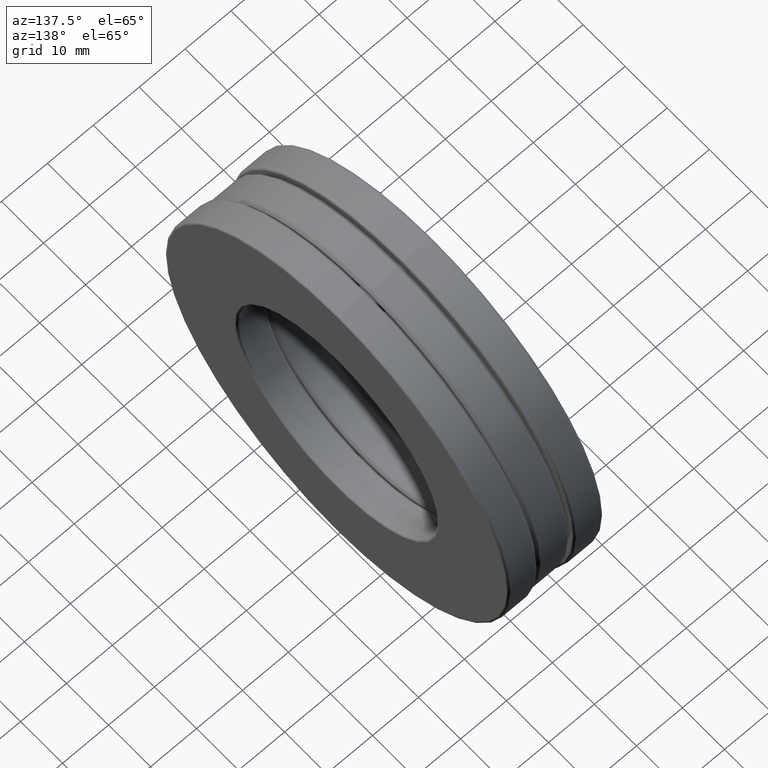
[diagram: clean part render]
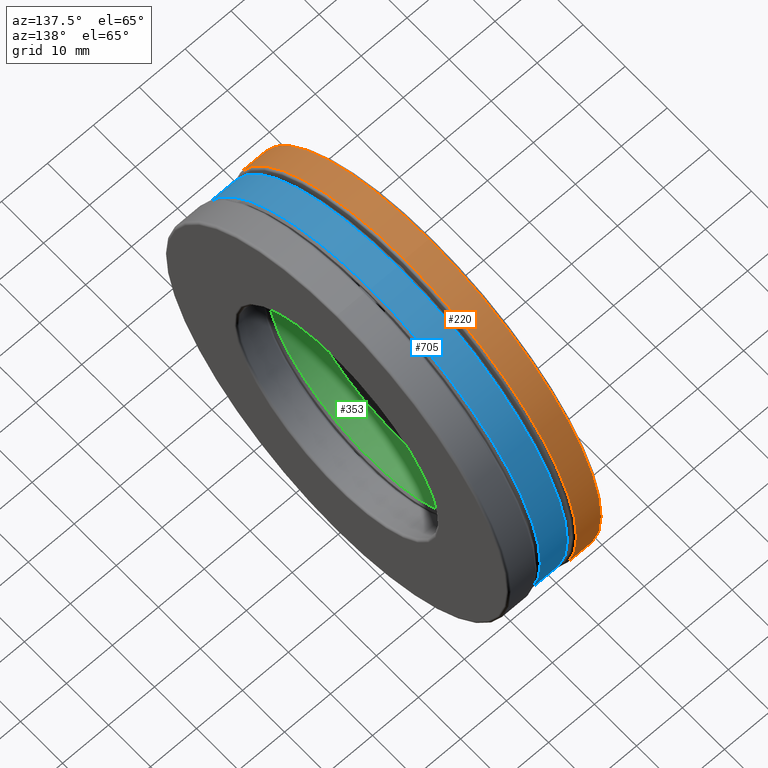
[diagram: same view with three faces highlighted in distinct colors, each labeled with its STEP entity id]
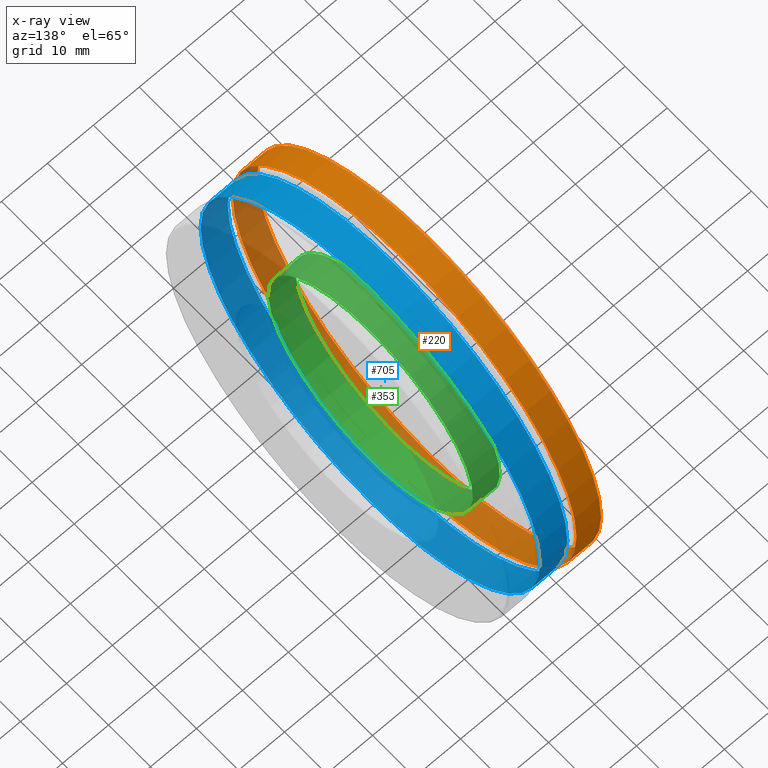
[diagram: x-ray of the same camera — body ghosted, the three highlighted faces saturated]
A machine part, auxiliary view with three faces highlighted in distinct colors.
The next image is the same camera in x-ray (body ghosted, the three faces saturated) — at least one of them is partly hidden behind the body in this view.
Their STEP definitions:

[orange] entity #220 — the highlighted cylindrical surface (bore or boss wall) has radius 40.8781 mm, axis along (-1, -0, -0).
#27 = DIRECTION ( 'NONE',  ( -1.000000000000000000, -0.0000000000000000000, -0.0000000000000000000 ) ) ;
#192 = DIRECTION ( 'NONE',  ( 0.0000000000000000000, 0.0000000000000000000, 1.000000000000000000 ) ) ;
#220 = ADVANCED_FACE ( 'NONE', ( #1051, #527 ), #978, .T. ) ;
#286 = EDGE_LOOP ( 'NONE', ( #696 ) ) ;
#298 = CARTESIAN_POINT ( 'NONE',  ( -0.3860000000000001800, 0.0000000000000000000, 0.0000000000000000000 ) ) ;
#527 = FACE_OUTER_BOUND ( 'NONE', #602, .T. ) ;
#602 = EDGE_LOOP ( 'NONE', ( #958 ) ) ;
#651 = AXIS2_PLACEMENT_3D ( 'NONE', #298, #1084, #192 ) ;
#696 = ORIENTED_EDGE ( 'NONE', *, *, #990, .F. ) ;
#698 = CARTESIAN_POINT ( 'NONE',  ( 0.0000000000000000000, 0.0000000000000000000, 0.0000000000000000000 ) ) ;
#764 = VERTEX_POINT ( 'NONE', #1190 ) ;
#795 = DIRECTION ( 'NONE',  ( 0.0000000000000000000, 0.0000000000000000000, 1.000000000000000000 ) ) ;
#866 = CARTESIAN_POINT ( 'NONE',  ( -0.1759999999999995500, 0.0000000000000000000, 1.609375000000000400 ) ) ;
#898 = CIRCLE ( 'NONE', #1145, 1.609375000000000400 ) ;
#919 = AXIS2_PLACEMENT_3D ( 'NONE', #698, #27, #1162 ) ;
#958 = ORIENTED_EDGE ( 'NONE', *, *, #1222, .T. ) ;
#978 = CYLINDRICAL_SURFACE ( 'NONE', #919, 1.609375000000000400 ) ;
#990 = EDGE_CURVE ( 'NONE', #764, #764, #1055, .T. ) ;
#1051 = FACE_OUTER_BOUND ( 'NONE', #286, .T. ) ;
#1055 = CIRCLE ( 'NONE', #651, 1.609375000000000400 ) ;
#1084 = DIRECTION ( 'NONE',  ( -1.000000000000000000, -0.0000000000000000000, -0.0000000000000000000 ) ) ;
#1145 = AXIS2_PLACEMENT_3D ( 'NONE', #1360, #1377, #795 ) ;
#1162 = DIRECTION ( 'NONE',  ( 0.0000000000000000000, 0.0000000000000000000, 1.000000000000000000 ) ) ;
#1190 = CARTESIAN_POINT ( 'NONE',  ( -0.3860000000000001800, 0.0000000000000000000, 1.609375000000000400 ) ) ;
#1222 = EDGE_CURVE ( 'NONE', #1273, #1273, #898, .T. ) ;
#1273 = VERTEX_POINT ( 'NONE', #866 ) ;
#1360 = CARTESIAN_POINT ( 'NONE',  ( -0.1759999999999995500, 0.0000000000000000000, 0.0000000000000000000 ) ) ;
#1377 = DIRECTION ( 'NONE',  ( -1.000000000000000000, -0.0000000000000000000, -0.0000000000000000000 ) ) ;

[blue] entity #705 — the highlighted cylindrical surface (bore or boss wall) has radius 40.3701 mm, axis along (-1, -0, -0).
#11 = CARTESIAN_POINT ( 'NONE',  ( 0.0000000000000000000, 0.0000000000000000000, 0.0000000000000000000 ) ) ;
#109 = FACE_OUTER_BOUND ( 'NONE', #358, .T. ) ;
#137 = AXIS2_PLACEMENT_3D ( 'NONE', #954, #1182, #1412 ) ;
#150 = EDGE_LOOP ( 'NONE', ( #1251 ) ) ;
#205 = CIRCLE ( 'NONE', #1230, 1.589375000000000200 ) ;
#268 = CYLINDRICAL_SURFACE ( 'NONE', #1385, 1.589375000000000200 ) ;
#319 = DIRECTION ( 'NONE',  ( 0.0000000000000000000, 0.0000000000000000000, 1.000000000000000000 ) ) ;
#358 = EDGE_LOOP ( 'NONE', ( #1284 ) ) ;
#550 = CARTESIAN_POINT ( 'NONE',  ( -0.1160000000000000300, 0.0000000000000000000, 1.589375000000000200 ) ) ;
#577 = DIRECTION ( 'NONE',  ( -1.000000000000000000, -0.0000000000000000000, -0.0000000000000000000 ) ) ;
#652 = VERTEX_POINT ( 'NONE', #1042 ) ;
#705 = ADVANCED_FACE ( 'NONE', ( #1014, #109 ), #268, .T. ) ;
#869 = EDGE_CURVE ( 'NONE', #652, #652, #932, .T. ) ;
#887 = DIRECTION ( 'NONE',  ( -1.000000000000000000, -0.0000000000000000000, -0.0000000000000000000 ) ) ;
#932 = CIRCLE ( 'NONE', #137, 1.589375000000000200 ) ;
#954 = CARTESIAN_POINT ( 'NONE',  ( 0.1160000000000000100, 0.0000000000000000000, 0.0000000000000000000 ) ) ;
#1014 = FACE_OUTER_BOUND ( 'NONE', #150, .T. ) ;
#1042 = CARTESIAN_POINT ( 'NONE',  ( 0.1160000000000000100, 0.0000000000000000000, 1.589375000000000200 ) ) ;
#1182 = DIRECTION ( 'NONE',  ( -1.000000000000000000, -0.0000000000000000000, -0.0000000000000000000 ) ) ;
#1220 = VERTEX_POINT ( 'NONE', #550 ) ;
#1230 = AXIS2_PLACEMENT_3D ( 'NONE', #1452, #887, #319 ) ;
#1251 = ORIENTED_EDGE ( 'NONE', *, *, #869, .T. ) ;
#1261 = DIRECTION ( 'NONE',  ( 0.0000000000000000000, 0.0000000000000000000, 1.000000000000000000 ) ) ;
#1284 = ORIENTED_EDGE ( 'NONE', *, *, #1316, .F. ) ;
#1316 = EDGE_CURVE ( 'NONE', #1220, #1220, #205, .T. ) ;
#1385 = AXIS2_PLACEMENT_3D ( 'NONE', #11, #577, #1261 ) ;
#1412 = DIRECTION ( 'NONE',  ( 0.0000000000000000000, 0.0000000000000000000, 1.000000000000000000 ) ) ;
#1452 = CARTESIAN_POINT ( 'NONE',  ( -0.1160000000000000300, 0.0000000000000000000, 0.0000000000000000000 ) ) ;

[green] entity #353 — the highlighted cylindrical surface (bore or boss wall) has radius 24.3205 mm, axis along (-1, -0, -0).
#44 = AXIS2_PLACEMENT_3D ( 'NONE', #502, #716, #276 ) ;
#194 = DIRECTION ( 'NONE',  ( 0.0000000000000000000, 0.0000000000000000000, 1.000000000000000000 ) ) ;
#276 = DIRECTION ( 'NONE',  ( 0.0000000000000000000, 0.0000000000000000000, 1.000000000000000000 ) ) ;
#351 = VERTEX_POINT ( 'NONE', #979 ) ;
#353 = ADVANCED_FACE ( 'NONE', ( #877, #568 ), #1406, .F. ) ;
#369 = VERTEX_POINT ( 'NONE', #1252 ) ;
#438 = ORIENTED_EDGE ( 'NONE', *, *, #1200, .T. ) ;
#502 = CARTESIAN_POINT ( 'NONE',  ( 0.1160000000000000800, 0.0000000000000000000, 0.0000000000000000000 ) ) ;
#568 = FACE_OUTER_BOUND ( 'NONE', #689, .T. ) ;
#684 = AXIS2_PLACEMENT_3D ( 'NONE', #729, #1337, #194 ) ;
#689 = EDGE_LOOP ( 'NONE', ( #438 ) ) ;
#716 = DIRECTION ( 'NONE',  ( -1.000000000000000000, -0.0000000000000000000, -0.0000000000000000000 ) ) ;
#718 = DIRECTION ( 'NONE',  ( 0.0000000000000000000, 0.0000000000000000000, 1.000000000000000000 ) ) ;
#729 = CARTESIAN_POINT ( 'NONE',  ( 0.0000000000000000000, 0.0000000000000000000, 0.0000000000000000000 ) ) ;
#810 = EDGE_CURVE ( 'NONE', #369, #369, #1411, .T. ) ;
#829 = AXIS2_PLACEMENT_3D ( 'NONE', #1191, #1071, #718 ) ;
#877 = FACE_OUTER_BOUND ( 'NONE', #1415, .T. ) ;
#979 = CARTESIAN_POINT ( 'NONE',  ( -0.1159999999999999800, 0.0000000000000000000, 0.9575000000000001300 ) ) ;
#1015 = ORIENTED_EDGE ( 'NONE', *, *, #810, .F. ) ;
#1071 = DIRECTION ( 'NONE',  ( -1.000000000000000000, -0.0000000000000000000, -0.0000000000000000000 ) ) ;
#1178 = CIRCLE ( 'NONE', #829, 0.9575000000000001300 ) ;
#1191 = CARTESIAN_POINT ( 'NONE',  ( -0.1159999999999999800, 0.0000000000000000000, 0.0000000000000000000 ) ) ;
#1200 = EDGE_CURVE ( 'NONE', #351, #351, #1178, .T. ) ;
#1252 = CARTESIAN_POINT ( 'NONE',  ( 0.1160000000000000800, 0.0000000000000000000, 0.9575000000000001300 ) ) ;
#1337 = DIRECTION ( 'NONE',  ( -1.000000000000000000, -0.0000000000000000000, -0.0000000000000000000 ) ) ;
#1406 = CYLINDRICAL_SURFACE ( 'NONE', #684, 0.9575000000000001300 ) ;
#1411 = CIRCLE ( 'NONE', #44, 0.9575000000000001300 ) ;
#1415 = EDGE_LOOP ( 'NONE', ( #1015 ) ) ;